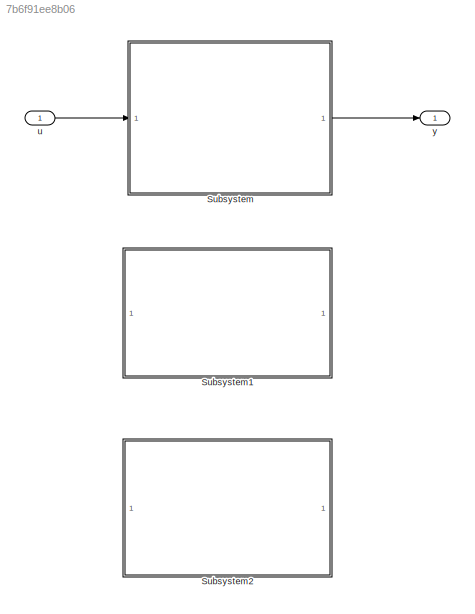
MODEL slx_7b6f91ee8b06
KIND model
CONFIG AbsTol = auto
CONFIG EnableMultiTasking = off
CONFIG FixedStep = auto
CONFIG MaxStep = auto
CONFIG MinStep = auto
CONFIG RelTol = 1e-3
CONFIG SampleTimeConstraint = Unconstrained
CONFIG SolverName = VariableStepAuto
CONFIG StartTime = 0.0
CONFIG StopTime = 100
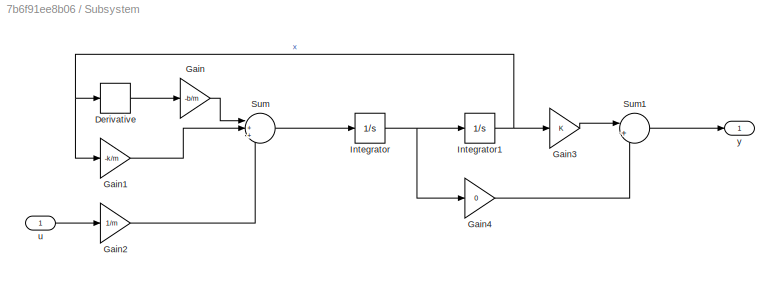
BLOCK [SubSystem] Subsystem
  Ports = [1, 1]
  RequestExecContextInheritance = off
BLOCK [Derivative] Subsystem/Derivative
BLOCK [Gain] Subsystem/Gain
  Gain = -b/m
BLOCK [Gain] Subsystem/Gain1
  Gain = -k/m
BLOCK [Gain] Subsystem/Gain2
  Gain = 1/m
BLOCK [Gain] Subsystem/Gain3
BLOCK [Gain] Subsystem/Gain4
  Gain = 0
BLOCK [Integrator] Subsystem/Integrator
  Ports = [1, 1]
BLOCK [Integrator] Subsystem/Integrator1
  Ports = [1, 1]
BLOCK [Sum] Subsystem/Sum
  Inputs = |+++
  Ports = [3, 1]
BLOCK [Sum] Subsystem/Sum1
  Inputs = |++
  Ports = [2, 1]
BLOCK [Inport] Subsystem/u
BLOCK [Outport] Subsystem/y
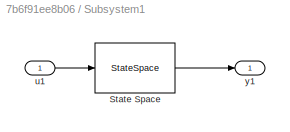
BLOCK [SubSystem] Subsystem1
  Commented = on
  Ports = [1, 1]
  RequestExecContextInheritance = off
BLOCK [StateSpace] Subsystem1/State Space
  A = [0 1; -k/m -b/m]
  B = [0; 1/m]
  C = [1 0]
  D = 0
  InitialCondition = [0;0]
  Ports = [1, 1]
BLOCK [Inport] Subsystem1/u1
BLOCK [Outport] Subsystem1/y1
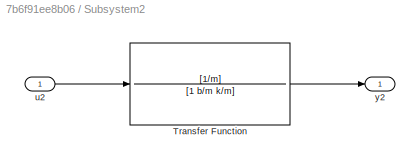
BLOCK [SubSystem] Subsystem2
  Commented = on
  Ports = [1, 1]
  RequestExecContextInheritance = off
BLOCK [TransferFcn] Subsystem2/Transfer Function
  Denominator = [1 b/m k/m]
  Numerator = [1/m]
BLOCK [Inport] Subsystem2/u2
BLOCK [Outport] Subsystem2/y2
BLOCK [Inport] u
BLOCK [Outport] y
LINE Subsystem/Derivative:1 -> Subsystem/Gain:1
LINE Subsystem/Gain1:1 -> Subsystem/Sum:2
LINE Subsystem/Gain2:1 -> Subsystem/Sum:3
LINE Subsystem/Gain3:1 -> Subsystem/Sum1:1
LINE Subsystem/Gain4:1 -> Subsystem/Sum1:2
LINE Subsystem/Gain:1 -> Subsystem/Sum:1
NET Subsystem/Integrator1:1 -> Subsystem/Derivative:1, Subsystem/Gain1:1, Subsystem/Gain3:1
NET Subsystem/Integrator:1 -> Subsystem/Gain4:1, Subsystem/Integrator1:1
LINE Subsystem/Sum1:1 -> Subsystem/y:1
LINE Subsystem/Sum:1 -> Subsystem/Integrator:1
LINE Subsystem/u:1 -> Subsystem/Gain2:1
LINE Subsystem1/State Space:1 -> Subsystem1/y1:1
LINE Subsystem1/u1:1 -> Subsystem1/State Space:1
LINE Subsystem2/Transfer Function:1 -> Subsystem2/y2:1
LINE Subsystem2/u2:1 -> Subsystem2/Transfer Function:1
LINE Subsystem:1 -> y:1
LINE u:1 -> Subsystem:1
note: NET lines group one-source signal fan-out (src -> all destinations, sorted); 1:1 wires keep LINE
